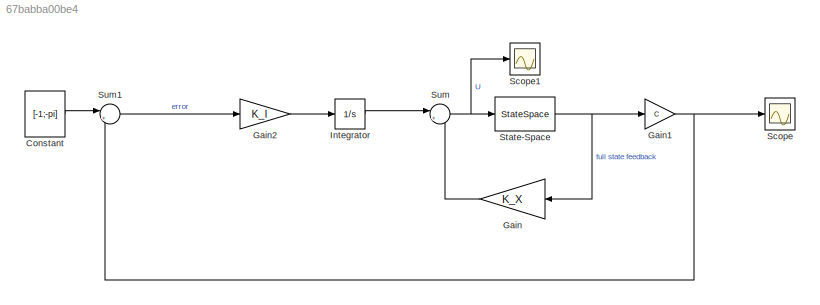
MODEL slx_67babba00be4
KIND model
CONFIG AbsTol = auto
CONFIG EnableMultiTasking = off
CONFIG FixedStep = auto
CONFIG MaxStep = auto
CONFIG MinStep = auto
CONFIG RelTol = 1e-3
CONFIG SampleTimeConstraint = Unconstrained
CONFIG SolverName = VariableStepAuto
CONFIG StartTime = 0.0
CONFIG StopTime = 50
BLOCK [Constant] Constant
  Value = [-1;-pi]
BLOCK [Gain] Gain
  Gain = K_X
  Multiplication = Matrix(K*u)
  NameLocation = top
BLOCK [Gain] Gain1
  Gain = C
  Multiplication = Matrix(K*u)
BLOCK [Gain] Gain2
  Gain = K_I
  Multiplication = Matrix(K*u)
BLOCK [Integrator] Integrator
  Ports = [1, 1]
BLOCK [Scope] Scope
  Floating = off
  NumInputPorts = 1
  Ports = [1]
  ScopeSpecificationString = Simulink.scopes.TimeScopeBlockCfg('CurrentConfiguration', extmgr.ConfigurationSet(extmgr.Configuration('Core','General UI',true),extmgr.Configuration('Core','Source UI',true),extmgr.Configuration('Sources','WiredSimulink',true),extmgr.Configuration('Visuals','Time Domain',true,'SerializedDisplays',{struct('MinYLimReal','-5.00948','MaxYLimReal','4.22678','YLabelReal','','MinYLimMag','0.00000','MaxY...<+1337ch>
BLOCK [Scope] Scope1
  Floating = off
  NumInputPorts = 1
  Ports = [1]
  ScopeSpecificationString = Simulink.scopes.TimeScopeBlockCfg('CurrentConfiguration', extmgr.ConfigurationSet(extmgr.Configuration('Core','General UI',true),extmgr.Configuration('Core','Source UI',true),extmgr.Configuration('Sources','WiredSimulink',true,'DataLoggingVariableName','ScopeData1'),extmgr.Configuration('Visuals','Time Domain',true,'SerializedDisplays',{struct('MinYLimReal','-93.8227','MaxYLimReal','58.21413','YLa...<+1370ch>
BLOCK [StateSpace] State-Space
  A = Ap
  B = Bp
  C = Cp
  D = 0.*Cp*Bp;
  InitialCondition = [1; -1; 3.14; 0]
  Ports = [1, 1]
BLOCK [Sum] Sum
  Inputs = |+-
  Ports = [2, 1]
BLOCK [Sum] Sum1
  Inputs = |+-
  Ports = [2, 1]
LINE Constant:1 -> Sum1:1
NET Gain1:1 -> Scope:1, Sum1:2
LINE Gain2:1 -> Integrator:1
LINE Gain:1 -> Sum:2
LINE Integrator:1 -> Sum:1
NET State-Space:1 -> Gain1:1, Gain:1
LINE Sum1:1 -> Gain2:1
NET Sum:1 -> Scope1:1, State-Space:1
note: NET lines group one-source signal fan-out (src -> all destinations, sorted); 1:1 wires keep LINE
